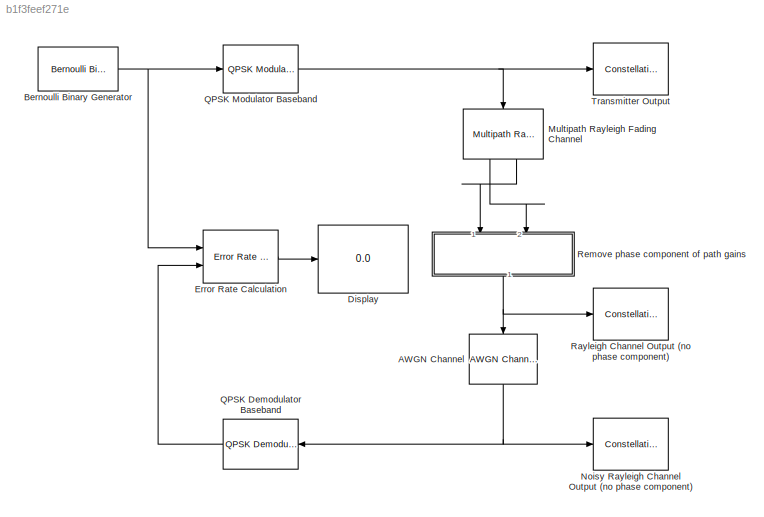
MODEL slx_b1f3feef271e
KIND model
CONFIG InitFcn = seed_binary = 12345;\nM=4;\nEbNo=5;\nrandseed_AWGN = 12351;\nseed_rayleigh = 12349;\nmaxNumErrs=1000;\nmaxNumBits=1e6;
BLOCK [Reference] AWGN Channel  REF=commchan3/AWGN
Channel
  EbNodB = EbNo
  EsNodB = 10
  InputProcessing = Columns as channels (frame based)
  Ports = [1, 1]
  Ps = 1
  SNRdB = EbNo+10*log10(log2(M))-10*log10((1e-6)/(1e-6))
  SourceBlock = commchan3/AWGN\nChannel
  SourceType = AWGN Channel
  Tsym = 1e-6
  UserDataPersistent = on
  bitsPerSym = log2(M)
  noiseMode = Signal to noise ratio  (Eb/No)
  seed = randseed_AWGN
  variance = 1
BLOCK [Reference] Bernoulli Binary Generator  REF=commrandsrc2/Bernoulli Binary
Generator
  P = 0.5
  Ports = [0, 1]
  SourceBlock = commrandsrc2/Bernoulli Binary\nGenerator
  SourceType = Bernoulli Binary Generator
  Ts = 1e-6/log2(M)
  frameBased = on
  orient = off
  outDataType = double
  sampPerFrame = 100*log2(M)
  seed = seed_binary
BLOCK [Display] Display
  Decimation = 1
  Ports = [1]
BLOCK [Reference] Error Rate Calculation  REF=commsink2/Error Rate
Calculation
  N = 0
  PMode = Port
  Ports = [2, 1]
  RsMode2 = off
  SourceBlock = commsink2/Error Rate\nCalculation
  SourceType = Error Rate Calculation
  WsName = BER
  cp_mode = Entire frame
  maxBits = maxNumBits
  numErr = maxNumErrs
  st_delay = 0
  stop = off
  subframe = []
BLOCK [Reference] Multipath Rayleigh Fading Channel  REF=commchan3/Multipath Rayleigh
Fading Channel
  Ports = [1, 2]
  SourceBlock = commchan3/Multipath Rayleigh\nFading Channel
  SourceType = Multipath Rayleigh Fading Channel
  avgPathGaindB = 0
  centerFreqGaussian1 = 0.0
  centerFreqGaussian2 = 0.0
  coeffBell = 9
  coeffRounded = [1 -1.72 0.785]
  dopplerSpectrum = doppler.jakes
  enableProbe = 0
  freqMinMaxAJakes = [0 1]
  freqMinMaxRJakes = [0 1]
  gainGaussian1 = 0.5
  gainGaussian2 = 0.5
  maxDopplerShift = 1000
  normalizePathGains = on
  openVisAtStart = off
  outDelay = off
  outPathGains = on
  pathDelays = 0
  seed = seed_rayleigh
  sigmaGaussian = 1/sqrt(2)
  sigmaGaussian1 = 1/sqrt(2)
  sigmaGaussian2 = 1/sqrt(2)
  spectrumType = Jakes
BLOCK [ConstellationDiagram] Noisy Rayleigh Channel Output (no phase component)
  Diagnostics = AllowInheritedTsInSrc
  Ports = [1]
  Tag = ScatterPlot
BLOCK [Reference] QPSK Demodulator Baseband  REF=commdigbbndpm3/QPSK
Demodulator
Baseband
  Dec = Gray
  DecType = Hard decision
  OutType = Bit
  Ph = pi/4
  Ports = [1, 1]
  SourceBlock = commdigbbndpm3/QPSK\nDemodulator\nBaseband
  SourceType = QPSK Demodulator Baseband
  VarSource = Dialog
  Variance = 1
  derotateFactorDTMode = Same word length as input
  derotateFactorWordLen = 16
  outDtype1 = double
  outDtype2 = double
BLOCK [Reference] QPSK Modulator Baseband  REF=commdigbbndpm3/QPSK
Modulator
Baseband
  Enc = Gray
  InType = Bit
  Ph = pi/4
  Ports = [1, 1]
  SourceBlock = commdigbbndpm3/QPSK\nModulator\nBaseband
  SourceType = QPSK Modulator Baseband
  outDtype = double
  outFracLen = 15
  outFracLenMode = Best precision
  outUDDataType = sfix(16)
  outWordLen = 16
BLOCK [ConstellationDiagram] Rayleigh Channel Output (no phase component)
  Diagnostics = AllowInheritedTsInSrc
  Ports = [1]
  Tag = ScatterPlot
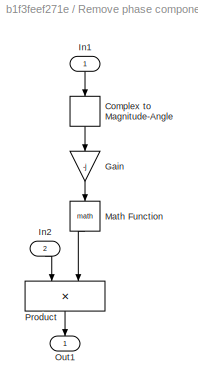
BLOCK [SubSystem] Remove phase component of path gains
  Ports = [2, 1]
  RequestExecContextInheritance = off
BLOCK [ComplexToMagnitudeAngle] Remove phase component of path gains/Complex to Magnitude-Angle
  Output = Angle
  Ports = [1, 1]
BLOCK [Gain] Remove phase component of path gains/Gain
  Gain = -j
  OutDataTypeStr = Inherit: Inherit via internal rule
  ParamDataTypeStr = Inherit: Inherit via internal rule
  SaturateOnIntegerOverflow = off
BLOCK [Inport] Remove phase component of path gains/In1
  IconDisplay = Port number
BLOCK [Inport] Remove phase component of path gains/In2
  IconDisplay = Port number
  Port = 2
BLOCK [Math] Remove phase component of path gains/Math Function
  Ports = [1, 1]
BLOCK [Outport] Remove phase component of path gains/Out1
  IconDisplay = Port number
BLOCK [Product] Remove phase component of path gains/Product
  InputSameDT = off
  OutDataTypeStr = Inherit: Inherit via internal rule
  Ports = [2, 1]
  SaturateOnIntegerOverflow = off
BLOCK [ConstellationDiagram] Transmitter Output
  Diagnostics = AllowInheritedTsInSrc
  Ports = [1]
  Tag = ScatterPlot
NET AWGN Channel:1 -> Noisy Rayleigh Channel Output (no phase component):1, QPSK Demodulator Baseband:1
NET Bernoulli Binary Generator:1 -> Error Rate Calculation:1, QPSK Modulator Baseband:1
LINE Error Rate Calculation:1 -> Display:1
LINE Multipath Rayleigh Fading Channel:1 -> Remove phase component of path gains:2
LINE Multipath Rayleigh Fading Channel:2 -> Remove phase component of path gains:1
LINE QPSK Demodulator Baseband:1 -> Error Rate Calculation:2
NET QPSK Modulator Baseband:1 -> Multipath Rayleigh Fading Channel:1, Transmitter Output:1
LINE Remove phase component of path gains/Complex to Magnitude-Angle:1 -> Remove phase component of path gains/Gain:1
LINE Remove phase component of path gains/Gain:1 -> Remove phase component of path gains/Math Function:1
LINE Remove phase component of path gains/In1:1 -> Remove phase component of path gains/Complex to Magnitude-Angle:1
LINE Remove phase component of path gains/In2:1 -> Remove phase component of path gains/Product:1
LINE Remove phase component of path gains/Math Function:1 -> Remove phase component of path gains/Product:2
LINE Remove phase component of path gains/Product:1 -> Remove phase component of path gains/Out1:1
NET Remove phase component of path gains:1 -> AWGN Channel:1, Rayleigh Channel Output (no phase component):1
note: NET lines group one-source signal fan-out (src -> all destinations, sorted); 1:1 wires keep LINE
